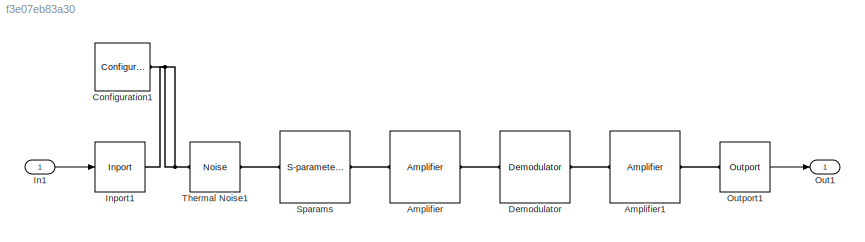
MODEL slx_f3e07eb83a30
KIND model
CONFIG AbsTol = auto
CONFIG EnableMultiTasking = off
CONFIG FixedStep = auto
CONFIG MaxStep = auto
CONFIG MinStep = auto
CONFIG RelTol = 1e-3
CONFIG SampleTimeConstraint = Unconstrained
CONFIG SolverName = VariableStepAuto
CONFIG StartTime = 0.0
CONFIG StopTime = 10.0
BLOCK [Reference] Amplifier  REF=simrfV2elements/Amplifier
  Ports = [0, 0, 0, 0, 0, 1, 1]
  SourceBlock = simrfV2elements/Amplifier
  SourceProductBaseCode = RB
  SourceType = Amplifier
BLOCK [Reference] Amplifier1  REF=simrfV2elements/Amplifier
  Ports = [0, 0, 0, 0, 0, 1, 1]
  SourceBlock = simrfV2elements/Amplifier
  SourceProductBaseCode = RB
  SourceType = Amplifier
BLOCK [Reference] Configuration1  REF=simrfV2util1/Configuration
  Ports = [0, 0, 0, 0, 0, 1]
  SourceBlock = simrfV2util1/Configuration
  SourceProductBaseCode = RB
  SourceType = Configuration
BLOCK [Reference] Demodulator  REF=simrfV2systems/Demodulator
  Ports = [0, 0, 0, 0, 0, 1, 1]
  SourceBlock = simrfV2systems/Demodulator
  SourceProductBaseCode = RB
  SourceType = Demodulator
BLOCK [Inport] In1
  Interpolate = off
  PortDimensions = 2
  SampleTime = 2e-08
  SignalType = complex
BLOCK [Reference] Inport1  REF=simrfV2util1/Inport
  Ports = [1, 0, 0, 0, 0, 0, 1]
  SourceBlock = simrfV2util1/Inport
  SourceProductBaseCode = RB
  SourceType = Inport
BLOCK [Outport] Out1
  PortDimensions = 1
  SampleTime = 2e-08
BLOCK [Reference] Outport1  REF=simrfV2util1/Outport
  Ports = [0, 1, 0, 0, 0, 1]
  SourceBlock = simrfV2util1/Outport
  SourceProductBaseCode = RB
  SourceType = Outport
BLOCK [Reference] Sparams  REF=simrfV2elements/S-parameters
  Ports = [0, 0, 0, 0, 0, 1, 1]
  SourceBlock = simrfV2elements/S-parameters
  SourceProductBaseCode = RB
  SourceType = S-parameters
  UserDataPersistent = on
BLOCK [Reference] Thermal Noise1  REF=simrfV2sources1/Noise
  Ports = [0, 0, 0, 0, 0, 1, 1]
  SourceBlock = simrfV2sources1/Noise
  SourceProductBaseCode = RB
  SourceType = Noise Source
LINE In1:1 -> Inport1:1
LINE Outport1:1 -> Out1:1
PLINE Amplifier1:LConn1 -- Demodulator:RConn1
PLINE Amplifier1:RConn1 -- Outport1:LConn1
PLINE Amplifier:LConn1 -- Sparams:RConn1
PLINE Amplifier:RConn1 -- Demodulator:LConn1
PNET net1: Configuration1:LConn1 -- Inport1:RConn1 -- Thermal Noise1:RConn1
PLINE Sparams:LConn1 -- Thermal Noise1:LConn1
note: PNET lines group multi-terminal physical nets as a canonical sorted terminal list (undirected conserving connections); 2-terminal nets keep the pairwise PLINE form
